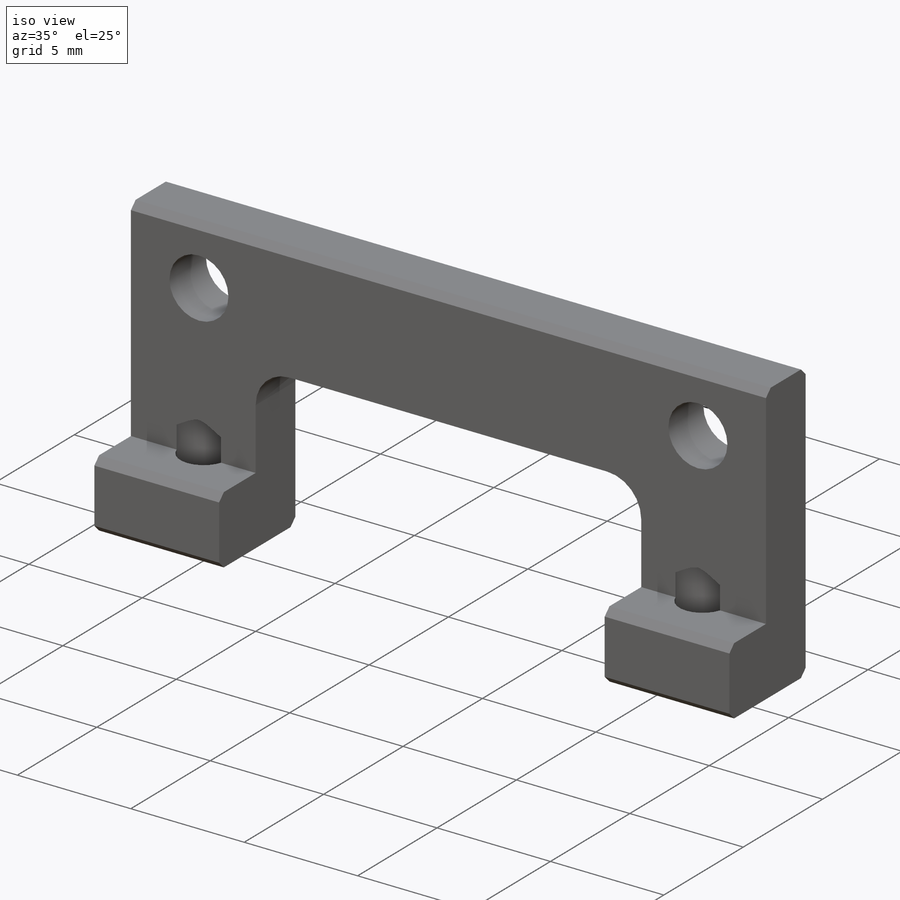
[diagram: iso view]
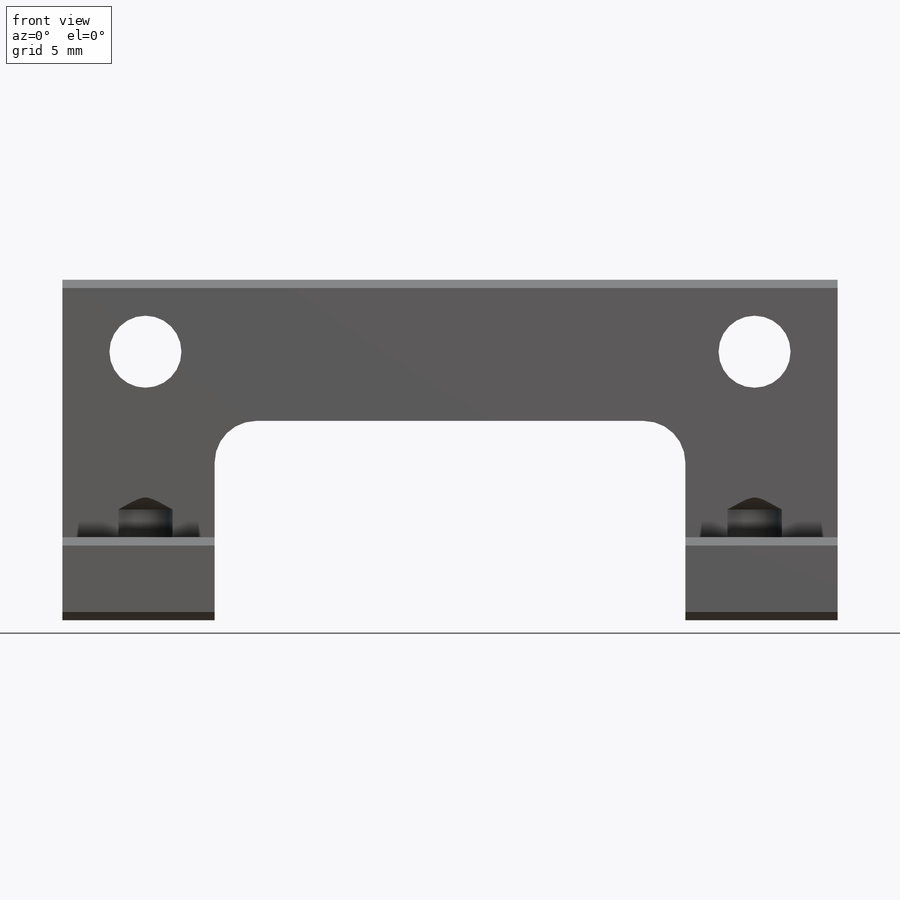
[diagram: front view]
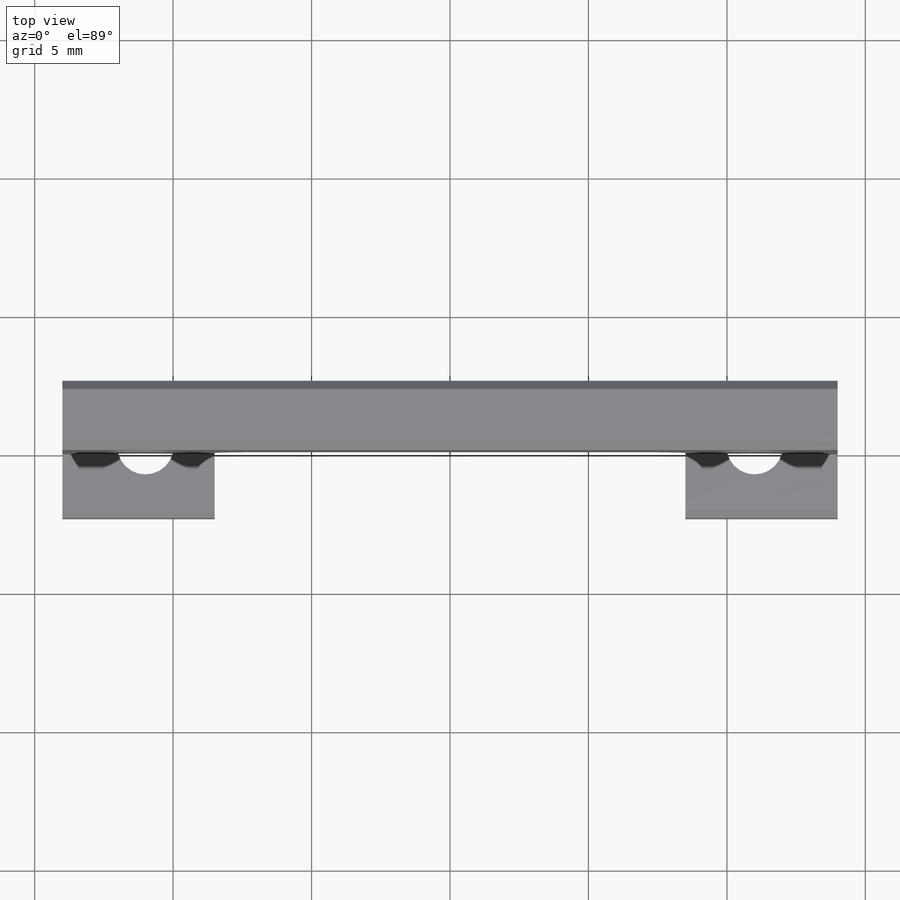
[diagram: top view]
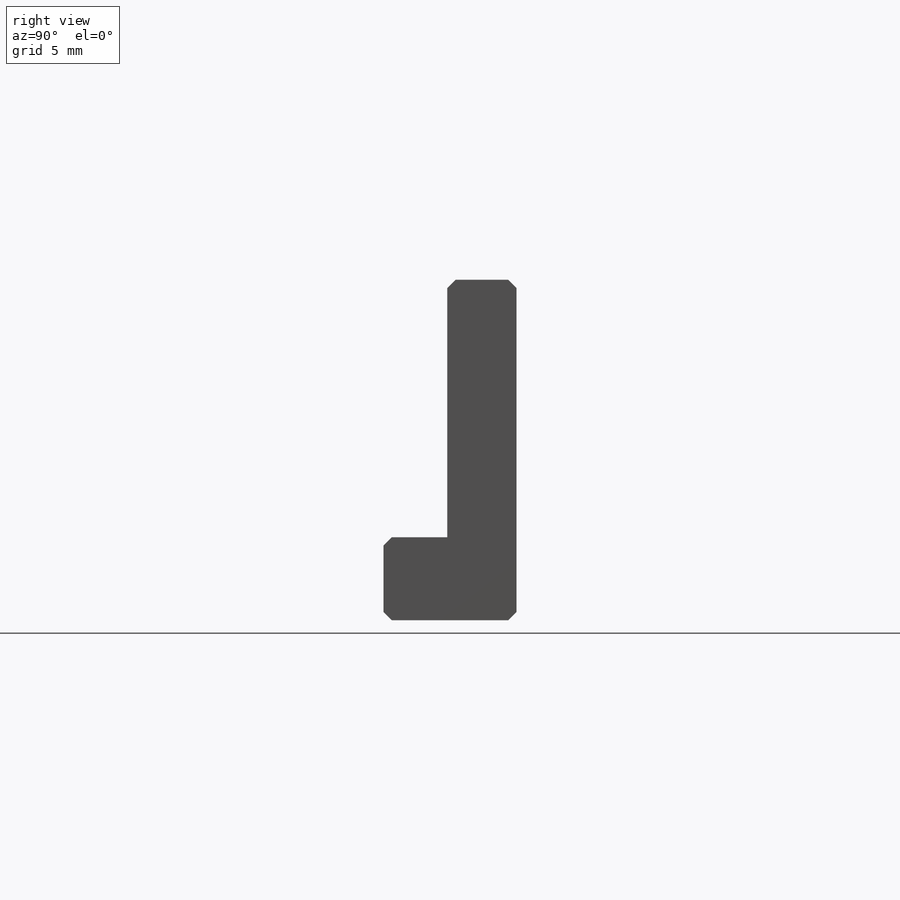
[diagram: right view]
SOLIDWORKS PART (.sldprt)
format: sldprt  version: not decoded by parser v0  size: 270,336 bytes
history: native  units: mm
features: sketch x9, extrude x4, hole x2, chamfer x2, material x1, plane x1, cut_extrude x1, fillet x1 (+13 scaffold rows collapsed)
feature tree (34):
  scaffold x13  (default folders/planes/origin — collapsed)
  material  "Material <not specified>"
  plane  "Plane1"
  sketch  "Sketch1"
  extrude  "Boss-Extrude1"  Depth=4.8mm
  sketch  "Sketch2"
  cut_extrude  "Cut-Extrude1"  Depth=5.5mm
  sketch  "Sketch3"
  extrude  "Boss-Extrude2"  Depth=22.5mm
  sketch  "Sketch4"
  extrude  "Boss-Extrude3"  Depth=7.2mm
  sketch  "Sketch5"
  extrude  "Boss-Extrude4"  Depth=2.3mm
  hole  "Ø2.6 (2.6) Diameter Hole1"  Diameter=2.6mm Depth=4.8mm
  sketch  "Sketch7"
  sketch  "Sketch6"  dims[hole-wizard template sketch: 59 standard entries collapsed; hole parameters kept: c18.Thru Hole Dia.=2.6mm c18.Thru Hole Depth=4.8mm]
  hole  "Ø2.05 (2.05) Diameter Hole1"  Diameter=2.05mm Depth=4mm
  sketch  "Sketch9"
  sketch  "Sketch8"  dims[hole-wizard template sketch: 47 standard entries collapsed; hole parameters kept: c15.Hole Depth=4.0mm c15.D3=~14.816244mm c15.Drill Angle=118.0deg]
  chamfer  "Chamfer1"  Distance=0.3mm Angle=45deg
  chamfer  "Chamfer2"  Distance=0.2mm Angle=45deg
  fillet  "Fillet1"  Radius=1.5mm
decode coverage: 12 of 19 modeling features carry decoded parameters
note: ~ marks probable driven/reference dimensions
note: suppression state not decoded; provenance and decode notes live in map.json
